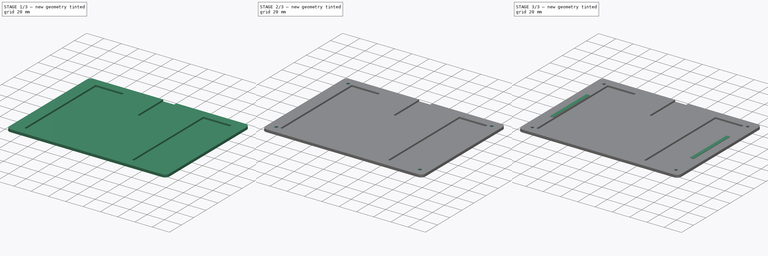
[diagram: build sequence overview — one tinted view per stage of 3, left to right]
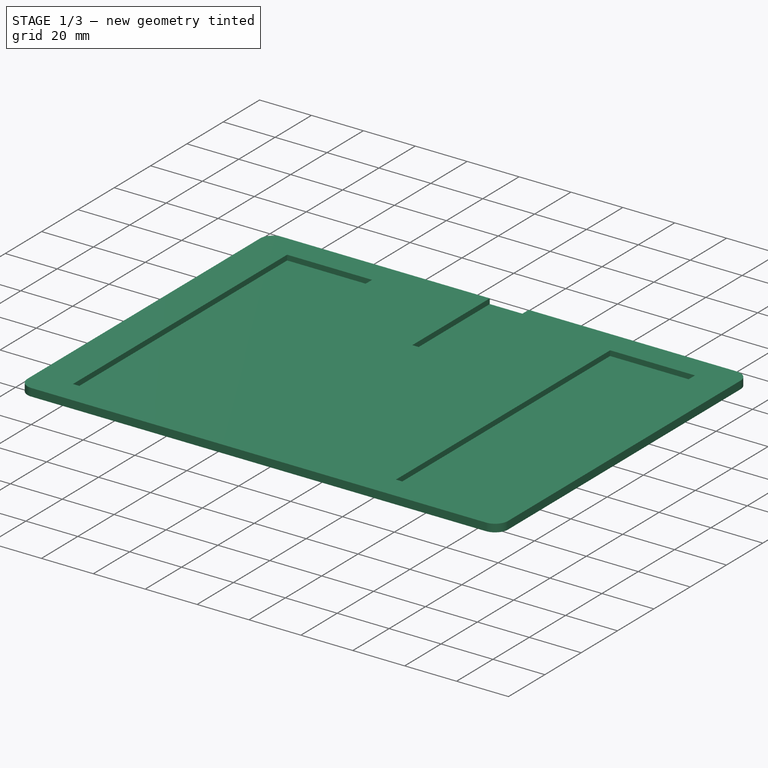
[diagram: stage 1 of 3 — iso view after this stage's code; geometry added in this stage tinted green]
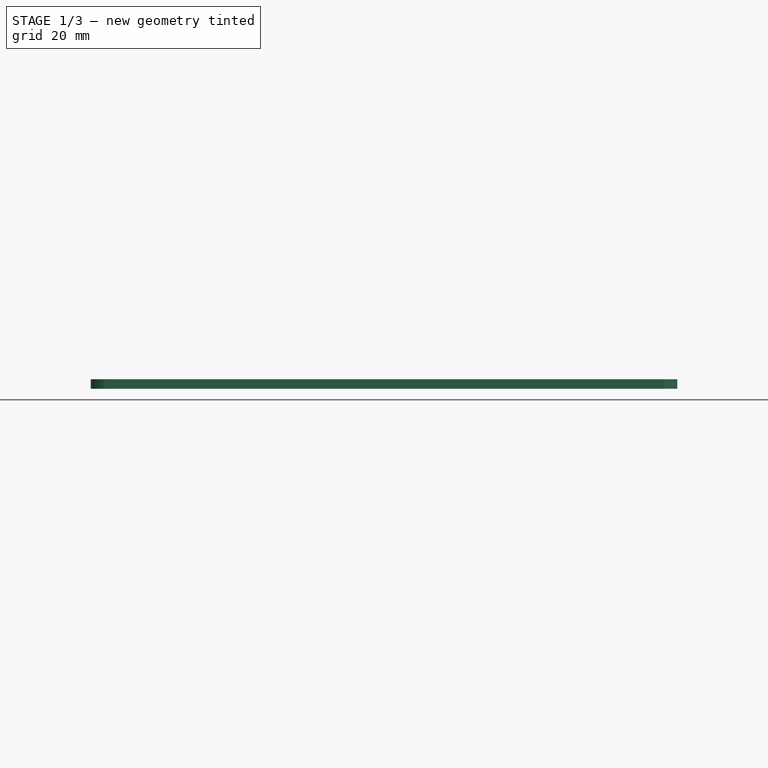
[diagram: stage 1 of 3 — front view after this stage's code; geometry added in this stage tinted green]
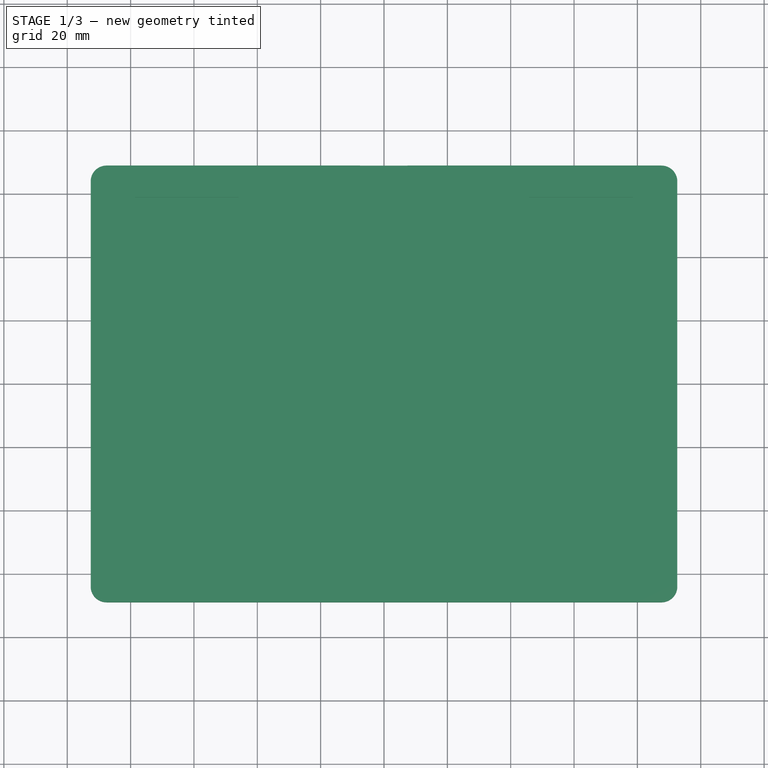
[diagram: stage 1 of 3 — top view after this stage's code; geometry added in this stage tinted green]
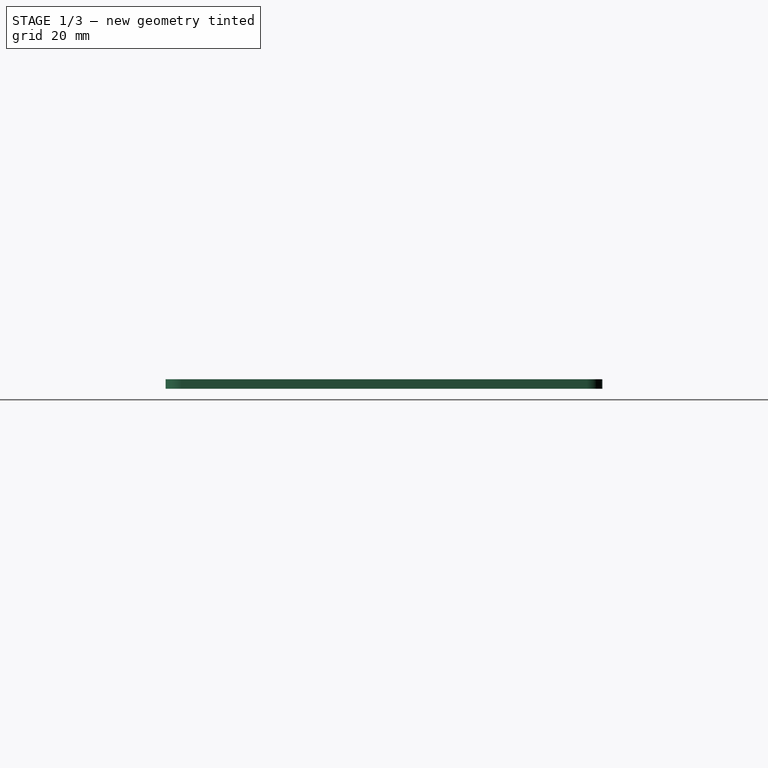
[diagram: stage 1 of 3 — right view after this stage's code; geometry added in this stage tinted green]
FCSTD DOCUMENT  (FreeCAD 1.0R39109 (Git))
Label: base
License: All rights reserved
LicenseURL: https://en.wikipedia.org/wiki/All_rights_reserved
objects: Sketcher::SketchObject×4, PartDesign::Pad×3, PartDesign::Pocket×1, PartDesign::Chamfer×1, PartDesign::Body×1
note: 24 computed .brp shape members not serialized (recipe doc carries the construction recipe); baked Part::Feature solids carry a one-line shape summary decoded from their .brp

FEATURE [Sketcher::SketchObject] Sketch
  ArcFitTolerance = 1e-06
  AttachmentSupport = -> [XY_Plane]
  FullyConstrained = true
  MakeInternals = false
  MapMode = 5
  sketch-geometry (12):
    g0: LineSegment StartX=-92.6 StartY=63.95 StartZ=0 EndX=-92.6 EndY=-63.95 EndZ=0
    g1: LineSegment StartX=-87.6 StartY=-68.95 StartZ=0 EndX=87.6 EndY=-68.95 EndZ=0
    g2: LineSegment StartX=92.6 StartY=-63.95 StartZ=0 EndX=92.6 EndY=63.95 EndZ=0
    g3: LineSegment StartX=87.6 StartY=68.95 StartZ=0 EndX=-87.6 EndY=68.95 EndZ=0
    g4: ArcOfCircle CenterX=-87.6 CenterY=63.95 CenterZ=0 NormalX=0 NormalY=0 NormalZ=1 AngleXU=0 Radius=5 StartAngle=1.5708 EndAngle=3.14159
    g5: GeomPoint [constr] X=-92.6 Y=68.95 Z=0
    g6: ArcOfCircle CenterX=87.6 CenterY=63.95 CenterZ=0 NormalX=0 NormalY=0 NormalZ=1 AngleXU=0 Radius=5 StartAngle=-9e-16 EndAngle=1.5708
    g7: GeomPoint [constr] X=92.6 Y=68.95 Z=0
    g8: ArcOfCircle CenterX=87.6 CenterY=-63.95 CenterZ=0 NormalX=0 NormalY=0 NormalZ=1 AngleXU=0 Radius=5 StartAngle=4.71239 EndAngle=6.28319
    g9: GeomPoint [constr] X=92.6 Y=-68.95 Z=0
    g10: ArcOfCircle CenterX=-87.6 CenterY=-63.95 CenterZ=0 NormalX=0 NormalY=0 NormalZ=1 AngleXU=0 Radius=5 StartAngle=3.14159 EndAngle=4.71239
    g11: GeomPoint [constr] X=-92.6 Y=-68.95 Z=0
  constraints (27):
    c: Vertical(g0)
    c: Vertical(g2)
    c: Horizontal(g1)
    c: Horizontal(g3)
    c: Symmetric(g9,g5,g-1)
    c: DistanceX(g5,g7) = 185.2
    c: DistanceY(g11,g5) = 137.9
    c: PointOnObject(g5,g0)
    c: PointOnObject(g5,g3)
    c: Tangent(g0,g4) = -1.5708
    c: Tangent(g3,g4) = -1.5708
    c: PointOnObject(g7,g2)
    c: PointOnObject(g7,g3)
    c: Tangent(g2,g6) = -1.5708
    c: Tangent(g3,g6) = -1.5708
    c: PointOnObject(g9,g1)
    c: PointOnObject(g9,g2)
    c: Tangent(g1,g8) = -1.5708
    c: Tangent(g2,g8) = -1.5708
    c: PointOnObject(g11,g0)
    c: PointOnObject(g11,g1)
    c: Tangent(g0,g10) = -1.5708
    c: Tangent(g1,g10) = -1.5708
    c: Equal(g10,g4)
    c: Equal(g4,g6)
    c: Equal(g6,g8)
    c: Radius(g8) = 5
FEATURE [PartDesign::Pad] Pad
  Direction = (0,0,1)
  Length = 1
  Length2 = 10
  Profile = -> Sketch
  ReferenceAxis = -> Sketch [N_Axis]
  Refine = true
  Reversed = true
  Suppressed = false
  Type = 0
FEATURE [Sketcher::SketchObject] Sketch001
  ArcFitTolerance = 1e-06
  AttachmentSupport = -> [XY_Plane]
  FullyConstrained = false
  MakeInternals = false
  MapMode = 5
  sketch-geometry (31):
    g0: LineSegment StartX=-92.6 StartY=63.9503 StartZ=0 EndX=-92.6 EndY=-63.95 EndZ=0
    g1: LineSegment StartX=-87.6 StartY=-68.95 StartZ=0 EndX=87.6 EndY=-68.95 EndZ=0
    g2: LineSegment StartX=92.6 StartY=-63.95 StartZ=0 EndX=92.6 EndY=63.95 EndZ=0
    g3: ArcOfCircle CenterX=-87.6 CenterY=63.9503 CenterZ=0 NormalX=0 NormalY=0 NormalZ=1 AngleXU=0 Radius=5 StartAngle=1.56037 EndAngle=3.14159
    g4: GeomPoint [constr] X=-92.6 Y=68.95 Z=0
    g5: ArcOfCircle CenterX=87.6 CenterY=63.95 CenterZ=0 NormalX=0 NormalY=0 NormalZ=1 AngleXU=0 Radius=5 StartAngle=0 EndAngle=1.57028
    g6: GeomPoint [constr] X=92.6 Y=68.95 Z=0
    g7: ArcOfCircle CenterX=87.6 CenterY=-63.95 CenterZ=0 NormalX=0 NormalY=0 NormalZ=1 AngleXU=0 Radius=5 StartAngle=4.71239 EndAngle=6.28319
    g8: GeomPoint [constr] X=92.6 Y=-68.95 Z=0
    g9: ArcOfCircle CenterX=-87.6 CenterY=-63.95 CenterZ=0 NormalX=0 NormalY=0 NormalZ=1 AngleXU=0 Radius=5 StartAngle=3.14159 EndAngle=4.71239
    g10: GeomPoint [constr] X=-92.6 Y=-68.95 Z=0
    g11: LineSegment StartX=-7.5 StartY=68.95 StartZ=0 EndX=-87.5479 EndY=68.95 EndZ=0
    g12: LineSegment StartX=87.6026 StartY=68.95 StartZ=0 EndX=7.5 EndY=68.95 EndZ=0
    g13: LineSegment [constr] StartX=7.5 StartY=68.95 StartZ=0 EndX=-7.5 EndY=68.95 EndZ=0
    g14: LineSegment StartX=-7.5 StartY=68.95 StartZ=0 EndX=-7.5 EndY=58.95 EndZ=0
    g15: LineSegment [constr] StartX=-7.5 StartY=58.95 StartZ=0 EndX=7.5 EndY=58.95 EndZ=0
    g16: LineSegment StartX=7.5 StartY=58.95 StartZ=0 EndX=7.5 EndY=68.95 EndZ=0
    g17: LineSegment StartX=-78.6 StartY=58.95 StartZ=0 EndX=-78.6 EndY=-58.95 EndZ=0
    g18: LineSegment StartX=78.6 StartY=-58.95 StartZ=0 EndX=78.6 EndY=58.95 EndZ=0
    g19: LineSegment [constr] StartX=-7.5 StartY=58.95 StartZ=0 EndX=-45.8792 EndY=58.95 EndZ=0
    g20: LineSegment StartX=-45.8792 StartY=58.95 StartZ=0 EndX=-78.6 EndY=58.95 EndZ=0
    g21: LineSegment StartX=78.6 StartY=58.95 StartZ=0 EndX=45.8792 EndY=58.95 EndZ=0
    g22: LineSegment [constr] StartX=45.8792 StartY=58.95 StartZ=0 EndX=7.5 EndY=58.95 EndZ=0
    g23: LineSegment StartX=-78.6 StartY=-58.95 StartZ=0 EndX=-45.8792 EndY=-58.95 EndZ=0
    g24: LineSegment [constr] StartX=-45.8792 StartY=-58.95 StartZ=0 EndX=45.8792 EndY=-58.95 EndZ=0
    g25: LineSegment StartX=45.8792 StartY=-58.95 StartZ=0 EndX=78.6 EndY=-58.95 EndZ=0
    g26: LineSegment StartX=-45.8792 StartY=58.95 StartZ=0 EndX=-45.8792 EndY=-58.95 EndZ=0
    g27: LineSegment StartX=45.8792 StartY=-58.95 StartZ=0 EndX=45.8792 EndY=58.95 EndZ=0
    g28: LineSegment StartX=-7.5 StartY=58.95 StartZ=0 EndX=-7.5 EndY=26.2866 EndZ=0
    g29: LineSegment StartX=-7.5 StartY=26.2866 StartZ=0 EndX=7.5 EndY=26.2866 EndZ=0
    g30: LineSegment StartX=7.5 StartY=26.2866 StartZ=0 EndX=7.5 EndY=58.95 EndZ=0
  constraints (75):
    c: Vertical(g0)
    c: Vertical(g2)
    c: Horizontal(g1)
    c: Symmetric(g8,g4,g-1)
    c: DistanceX(g4,g6) = 185.2
    c: DistanceY(g10,g4) = 137.9
    c: PointOnObject(g4,g0)
    c: Tangent(g0,g3) = -1.5708
    c: Coincident(g11,g3) = -1.5708
    c: PointOnObject(g6,g2)
    c: Tangent(g2,g5) = -1.5708
    c: Coincident(g12,g5) = -1.5708
    c: PointOnObject(g8,g1)
    c: PointOnObject(g8,g2)
    c: Tangent(g1,g7) = -1.5708
    c: Tangent(g2,g7) = -1.5708
    c: PointOnObject(g10,g0)
    c: PointOnObject(g10,g1)
    c: Tangent(g0,g9) = -1.5708
    c: Tangent(g1,g9) = -1.5708
    c: Equal(g9,g3)
    c: Equal(g3,g5)
    c: Equal(g5,g7)
    c: Radius(g7) = 5
    c: Coincident(g13,g11)
    c: Horizontal(g11)
    c: PointOnObject(g4,g11)
    c: Coincident(g12,g13)
    c: Horizontal(g12)
    c: Horizontal(g13)
    c: PointOnObject(g6,g12)
    c: Distance(g14) = 10
    c: Vertical(g14)
    c: Coincident(g14,g11)
    c: Coincident(g15,g14)
    c: Coincident(g16,g15)
    c: Coincident(g16,g12)
    c: Vertical(g16)
    c: Symmetric(g15,g14,g-2)
    c: Coincident(g14,g19)
    c: Coincident(g20,g17)
    c: Vertical(g17)
    c: Coincident(g17,g23)
    c: Coincident(g25,g18)
    c: Vertical(g18)
    c: Coincident(g18,g21)
    c: Coincident(g22,g15)
    c: Distance(g17,g0) = 14
    c: Distance(g17,g1) = 10
    c: DistanceX(g13,g13) = 15
    c: Coincident(g19,g20)
    c: Horizontal(g19)
    c: Horizontal(g20)
    c: Coincident(g21,g22)
    c: Horizontal(g21)
    c: Horizontal(g22)
    c: Coincident(g23,g24)
    c: Horizontal(g23)
    c: Coincident(g24,g25)
    c: Horizontal(g24)
    c: Horizontal(g25)
    c: Coincident(g26,g19)
    c: Coincident(g26,g23)
    c: Coincident(g27,g24)
    c: Coincident(g27,g21)
    c: Vertical(g27)
    c: Vertical(g26)
    c: Coincident(g28,g14)
    c: Vertical(g28)
    c: Coincident(g29,g28)
    c: Horizontal(g29)
    c: Coincident(g30,g29)
    c: Coincident(g30,g15)
    c: Vertical(g30)
    c: Equal(g19,g22)
FEATURE [PartDesign::Pad] Pad001
  BaseFeature = -> Pad
  Direction = (0,0,1)
  Length = 2
  Length2 = 10
  Profile = -> Sketch001
  ReferenceAxis = -> Sketch001 [N_Axis]
  Refine = true
  Suppressed = false
  Type = 0
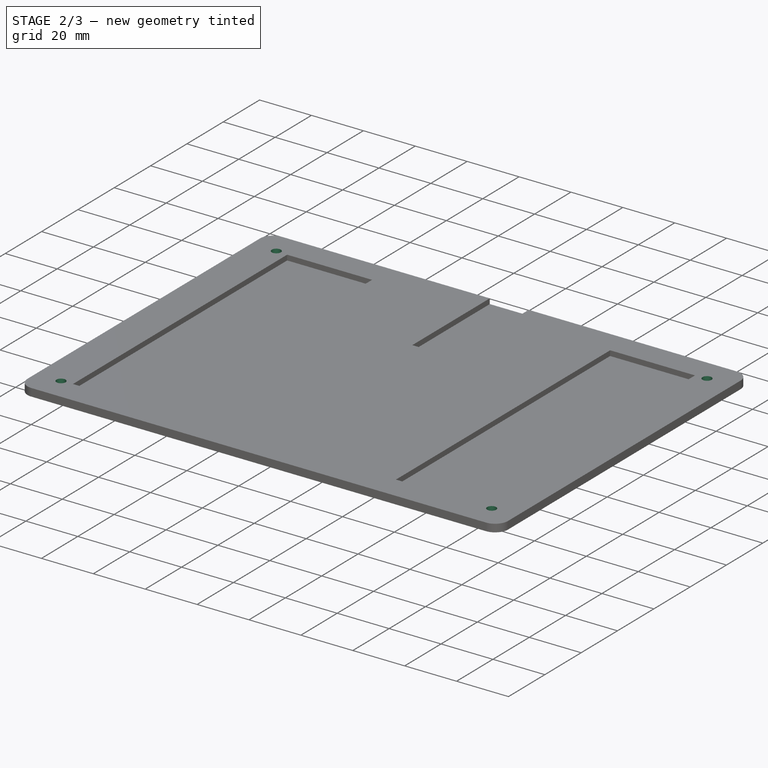
[diagram: stage 2 of 3 — iso view after this stage's code; geometry added in this stage tinted green]
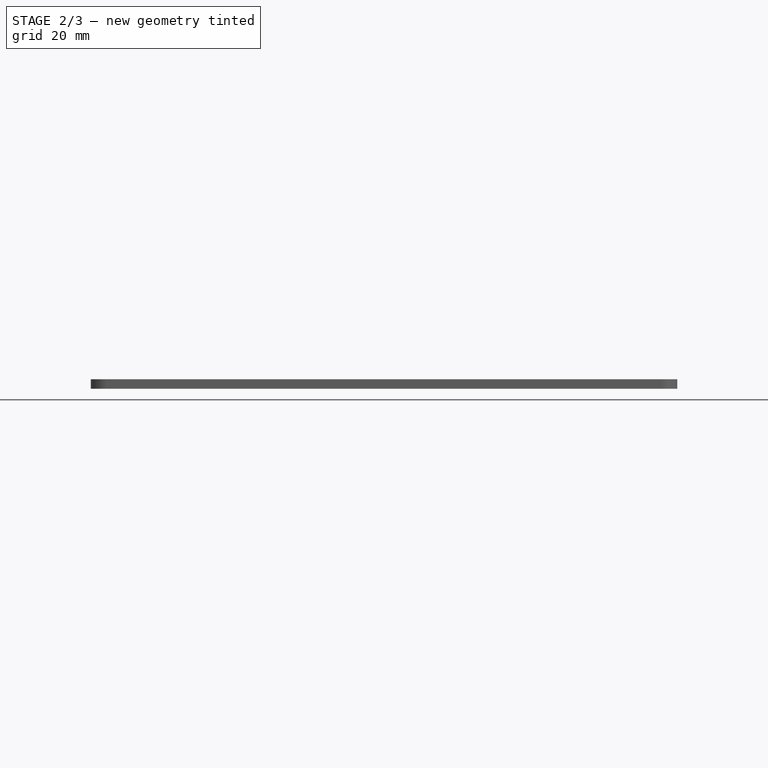
[diagram: stage 2 of 3 — front view after this stage's code; geometry added in this stage tinted green]
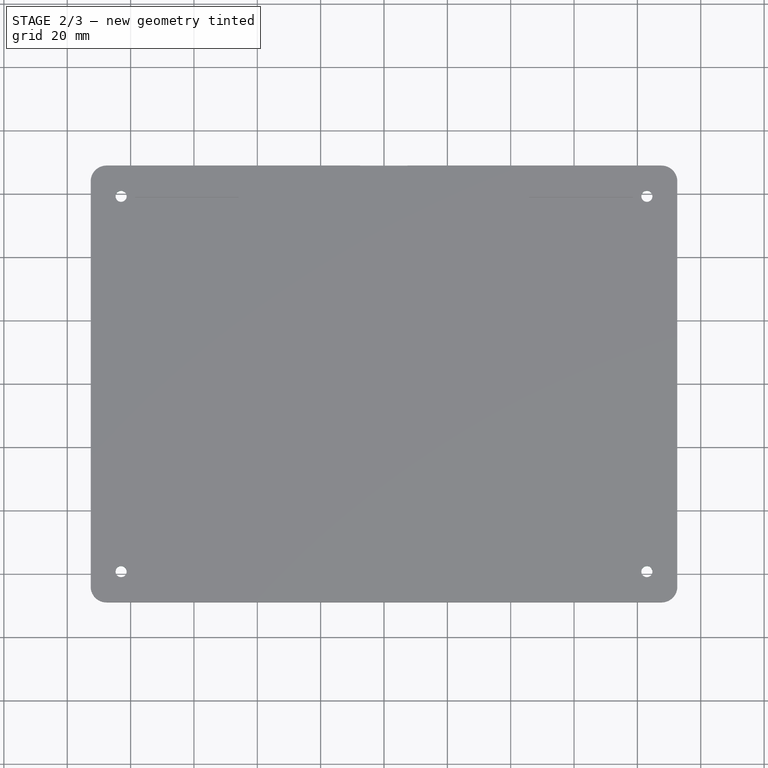
[diagram: stage 2 of 3 — top view after this stage's code; geometry added in this stage tinted green]
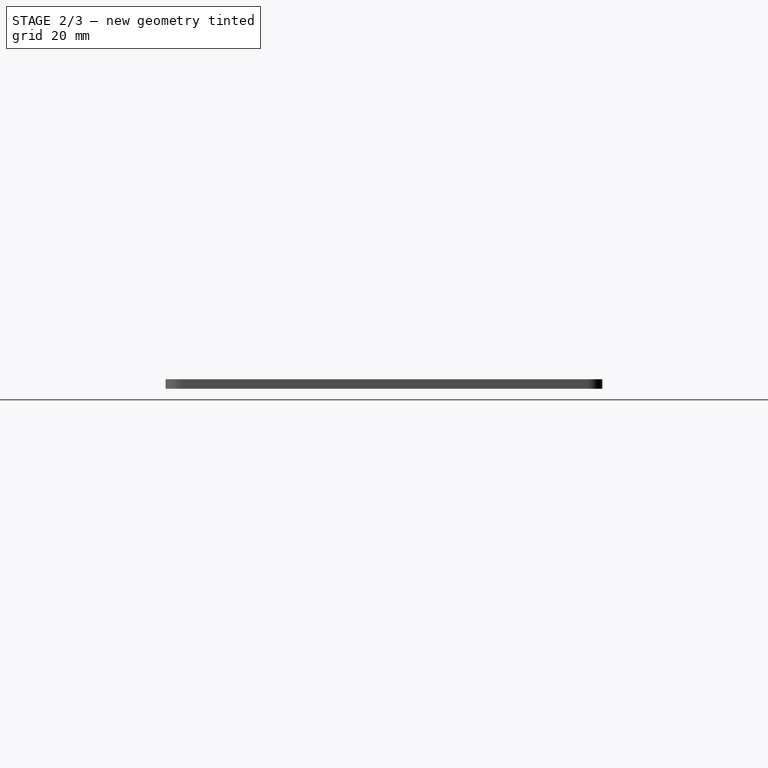
[diagram: stage 2 of 3 — right view after this stage's code; geometry added in this stage tinted green]
FEATURE [Sketcher::SketchObject] Sketch002
  ArcFitTolerance = 1e-06
  AttachmentSupport = -> [XY_Plane]
  FullyConstrained = true
  MakeInternals = false
  MapMode = 5
  sketch-geometry (8):
    g0: Circle CenterX=-83 CenterY=59.25 CenterZ=0 NormalX=0 NormalY=0 NormalZ=1 AngleXU=0 Radius=1.75
    g1: LineSegment [constr] StartX=-83 StartY=59.25 StartZ=0 EndX=-83 EndY=-59.25 EndZ=0
    g2: LineSegment [constr] StartX=-83 StartY=-59.25 StartZ=0 EndX=83 EndY=-59.25 EndZ=0
    g3: LineSegment [constr] StartX=83 StartY=-59.25 StartZ=0 EndX=83 EndY=59.25 EndZ=0
    g4: LineSegment [constr] StartX=83 StartY=59.25 StartZ=0 EndX=-83 EndY=59.25 EndZ=0
    g5: Circle CenterX=83 CenterY=59.25 CenterZ=0 NormalX=0 NormalY=0 NormalZ=1 AngleXU=0 Radius=1.75
    g6: Circle CenterX=83 CenterY=-59.25 CenterZ=0 NormalX=0 NormalY=0 NormalZ=1 AngleXU=0 Radius=1.75
    g7: Circle CenterX=-83 CenterY=-59.25 CenterZ=0 NormalX=0 NormalY=0 NormalZ=1 AngleXU=0 Radius=1.75
  constraints (19):
    c: Diameter(g0) = 3.5
    c: Coincident(g1,g2)
    c: Coincident(g2,g3)
    c: Coincident(g3,g4)
    c: Coincident(g4,g1)
    c: Vertical(g1)
    c: Vertical(g3)
    c: Horizontal(g2)
    c: Horizontal(g4)
    c: Coincident(g1,g0)
    c: Symmetric(g2,g0,g-1)
    c: Coincident(g5,g3)
    c: Coincident(g6,g2)
    c: Coincident(g7,g1)
    c: Equal(g6,g5)
    c: Equal(g5,g0)
    c: DistanceX(g0) = -83
    c: DistanceY(g0) = 59.25
    c: Equal(g6,g7)
FEATURE [PartDesign::Pocket] Pocket
  BaseFeature = -> Pad001
  Direction = (0,0,-1)
  Length = 5
  Length2 = 5
  Midplane = true
  Profile = -> Sketch002
  ReferenceAxis = -> Sketch002 [N_Axis]
  Refine = true
  Suppressed = false
  Type = 1
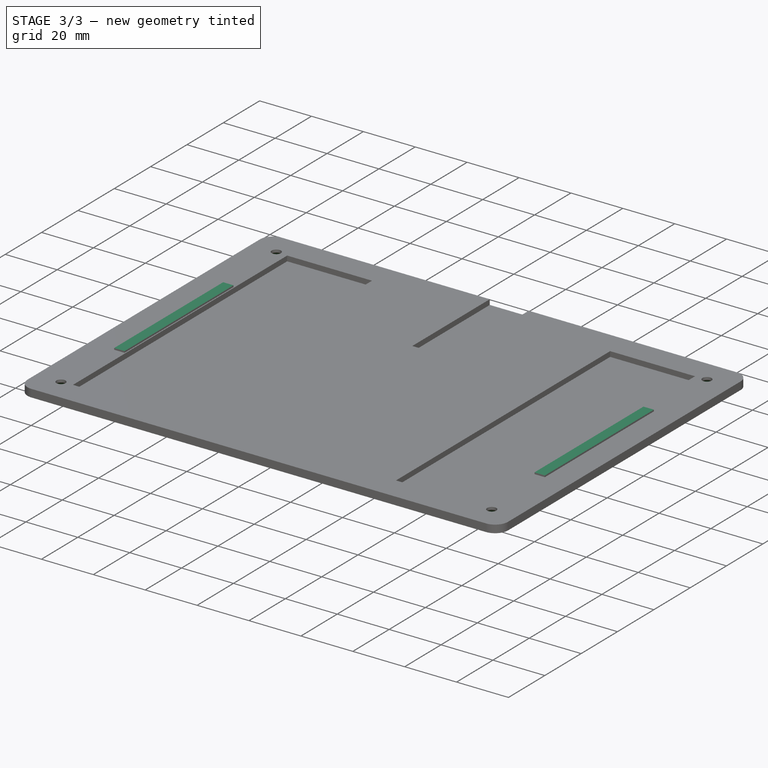
[diagram: stage 3 of 3 — iso view after this stage's code; geometry added in this stage tinted green]
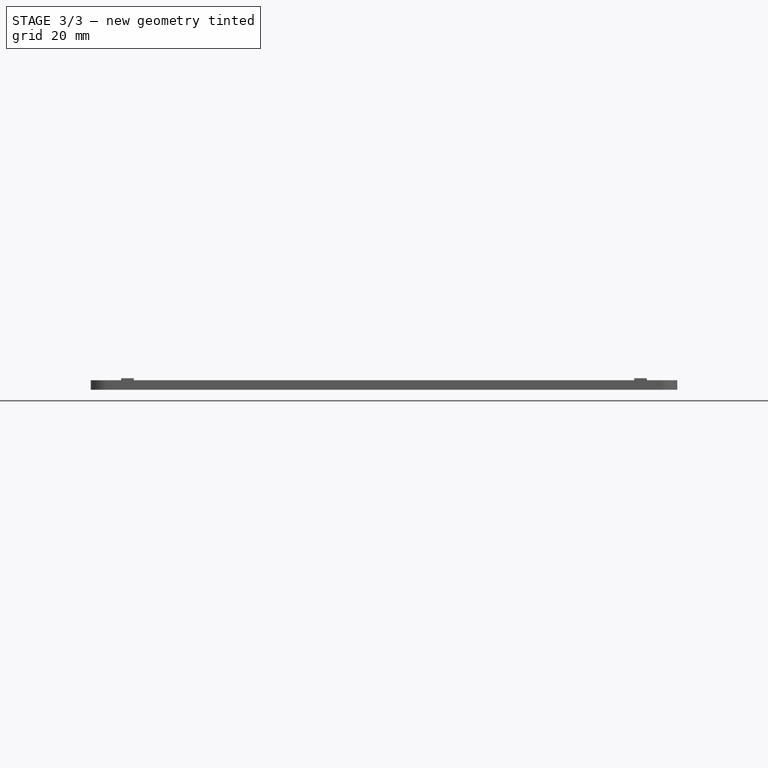
[diagram: stage 3 of 3 — front view after this stage's code; geometry added in this stage tinted green]
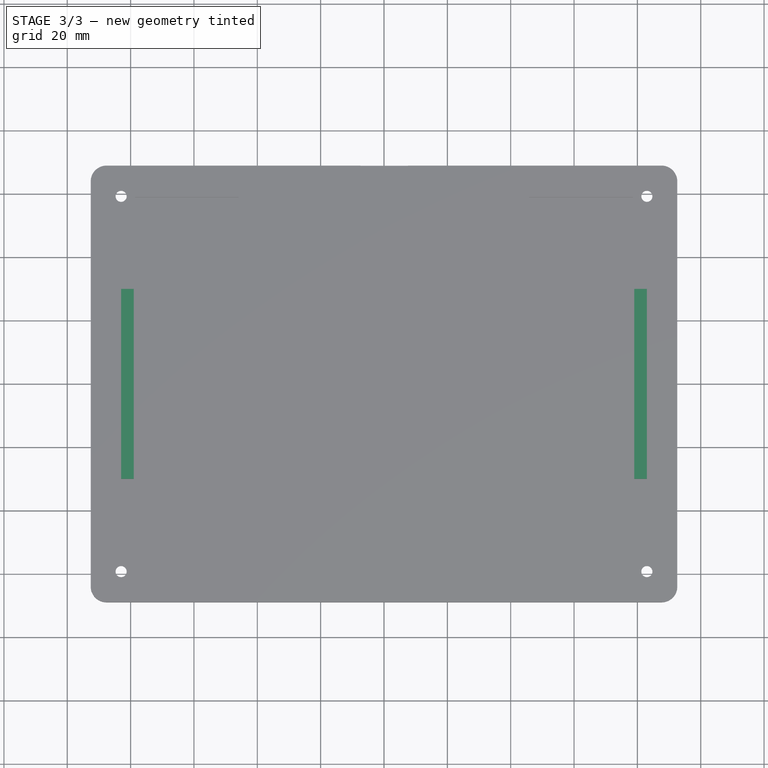
[diagram: stage 3 of 3 — top view after this stage's code; geometry added in this stage tinted green]
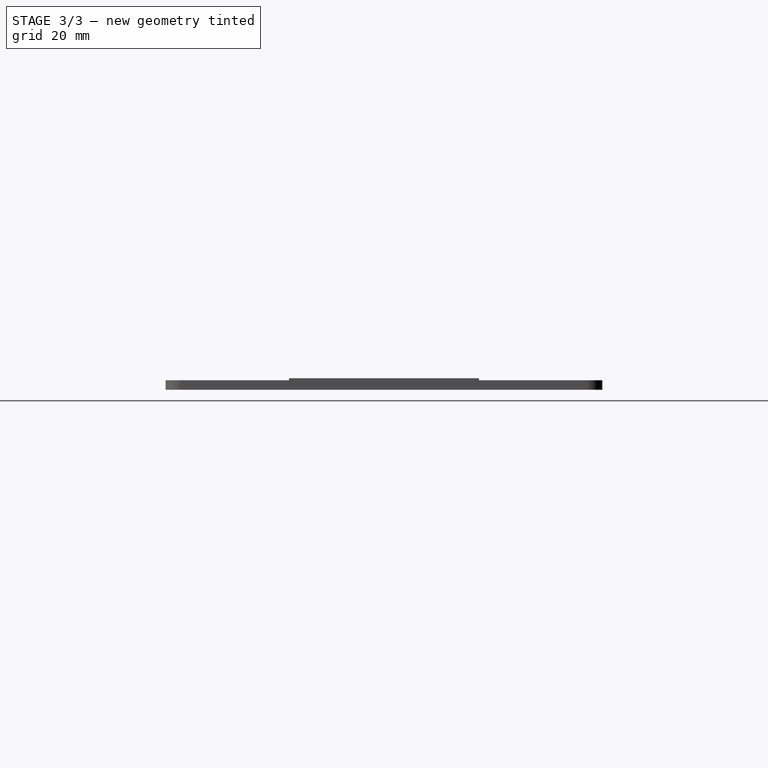
[diagram: stage 3 of 3 — right view after this stage's code; geometry added in this stage tinted green]
FEATURE [PartDesign::Chamfer] Chamfer
  Angle = 45
  Base = -> Pocket [Edge32,Edge30,Edge31,Edge33]
  BaseFeature = -> Pocket
  ChamferType = 0
  FlipDirection = false
  Refine = true
  Size = 2
  Size2 = 1
  SupportTransform = false
  Suppressed = false
  UseAllEdges = false
FEATURE [Sketcher::SketchObject] Sketch003
  ArcFitTolerance = 1e-06
  AttachmentSupport = -> [XY_Plane]
  FullyConstrained = true
  MakeInternals = false
  MapMode = 5
  sketch-geometry (8):
    g0: LineSegment StartX=-83 StartY=30 StartZ=0 EndX=-83 EndY=-30 EndZ=0
    g1: LineSegment StartX=-83 StartY=-30 StartZ=0 EndX=-79 EndY=-30 EndZ=0
    g2: LineSegment StartX=-79 StartY=-30 StartZ=0 EndX=-79 EndY=30 EndZ=0
    g3: LineSegment StartX=-79 StartY=30 StartZ=0 EndX=-83 EndY=30 EndZ=0
    g4: LineSegment StartX=79 StartY=30 StartZ=0 EndX=79 EndY=-30 EndZ=0
    g5: LineSegment StartX=79 StartY=-30 StartZ=0 EndX=83 EndY=-30 EndZ=0
    g6: LineSegment StartX=83 StartY=-30 StartZ=0 EndX=83 EndY=30 EndZ=0
    g7: LineSegment StartX=83 StartY=30 StartZ=0 EndX=79 EndY=30 EndZ=0
  constraints (22):
    c: Coincident(g0,g1)
    c: Coincident(g1,g2)
    c: Coincident(g2,g3)
    c: Coincident(g3,g0)
    c: Vertical(g2)
    c: Horizontal(g1)
    c: Horizontal(g3)
    c: Distance(g0,g2) = 4
    c: Distance(g1,g3) = 60
    c: Symmetric(g0,g0,g-1)
    c: DistanceX(g0) = -83
    c: Coincident(g4,g5)
    c: Coincident(g5,g6)
    c: Coincident(g6,g7)
    c: Coincident(g7,g4)
    c: Vertical(g4)
    c: Vertical(g6)
    c: Horizontal(g5)
    c: Horizontal(g7)
    c: Equal(g4,g2)
    c: Equal(g7,g3)
    c: Symmetric(g0,g5,g-1)
FEATURE [PartDesign::Pad] Pad002
  BaseFeature = -> Chamfer
  Direction = (0,0,1)
  Length = 2.6
  Length2 = 10
  Profile = -> Sketch003
  ReferenceAxis = -> Sketch003 [N_Axis]
  Refine = true
  Suppressed = false
  Type = 0
FEATURE [PartDesign::Body] Body
  AllowCompound = false
  Group = -> [Sketch,Pad,Sketch001,Pad001,Sketch002,Pocket,Chamfer,Sketch003,Pad002]
  Origin = -> Origin
  Tip = -> Pad002
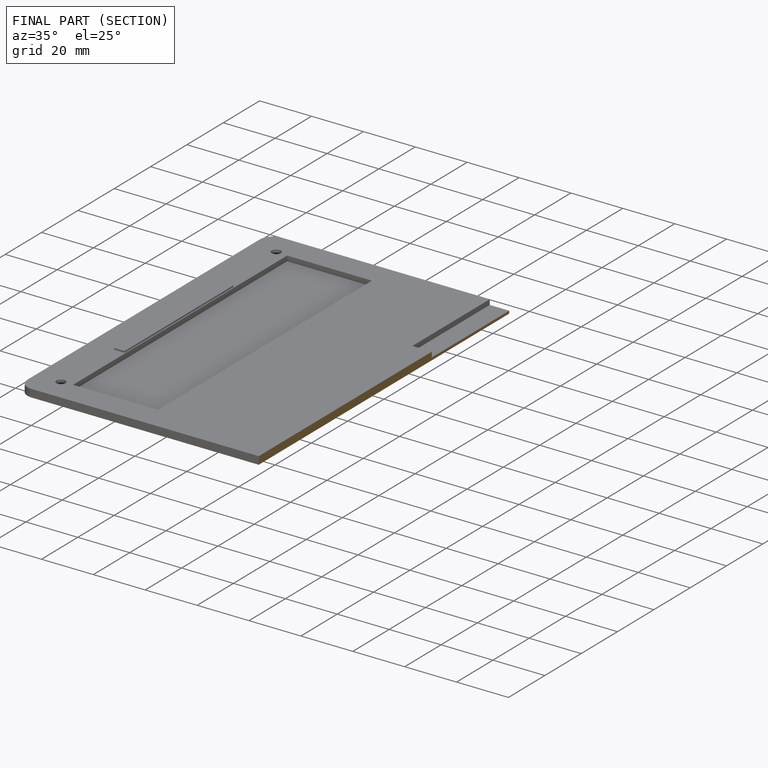
[diagram: finished part — half-section view (interior)]
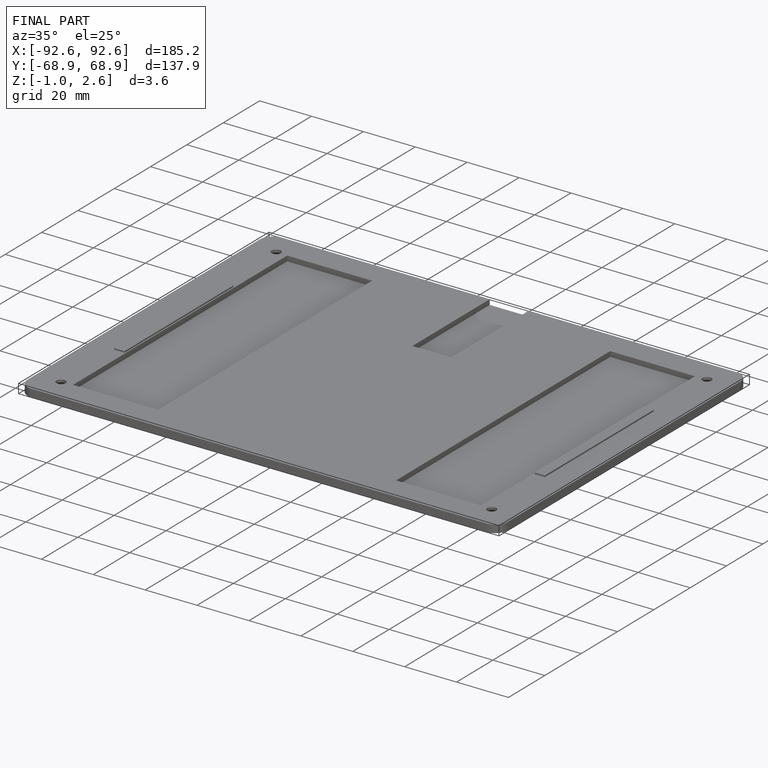
[diagram: finished part — iso view with bounding-box wireframe]
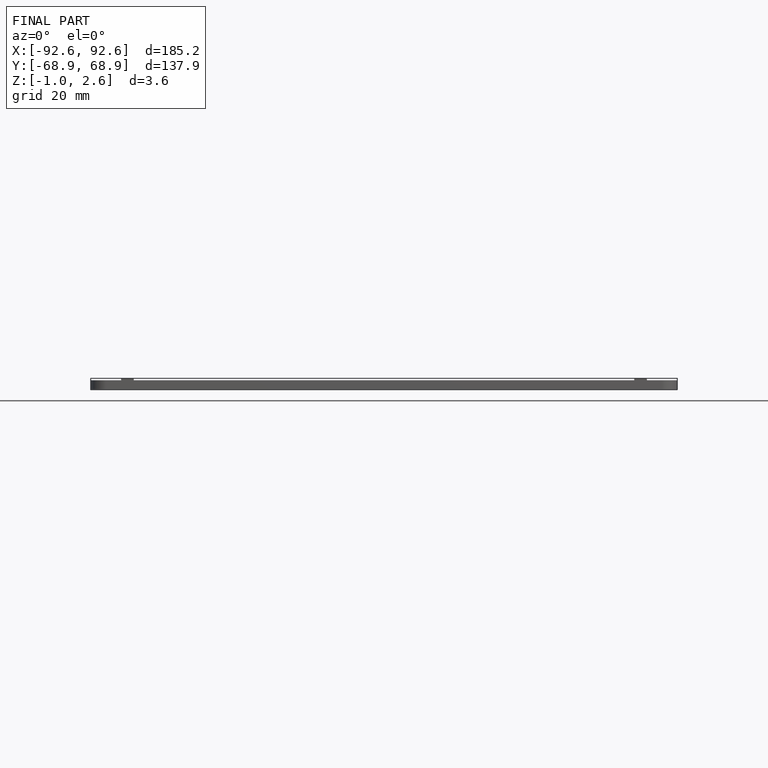
[diagram: finished part — front view with bounding-box wireframe]
